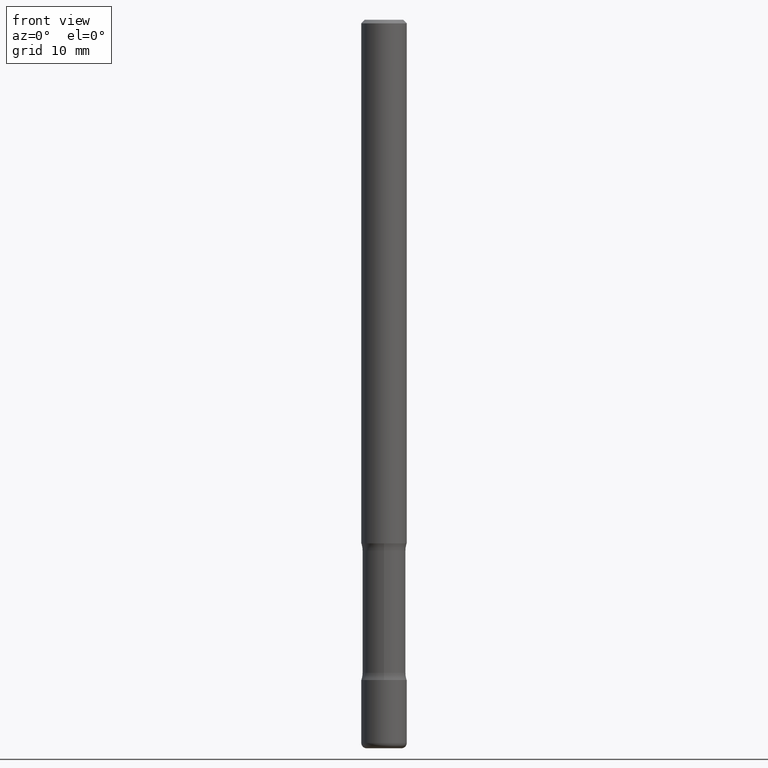
[diagram: clean part render]
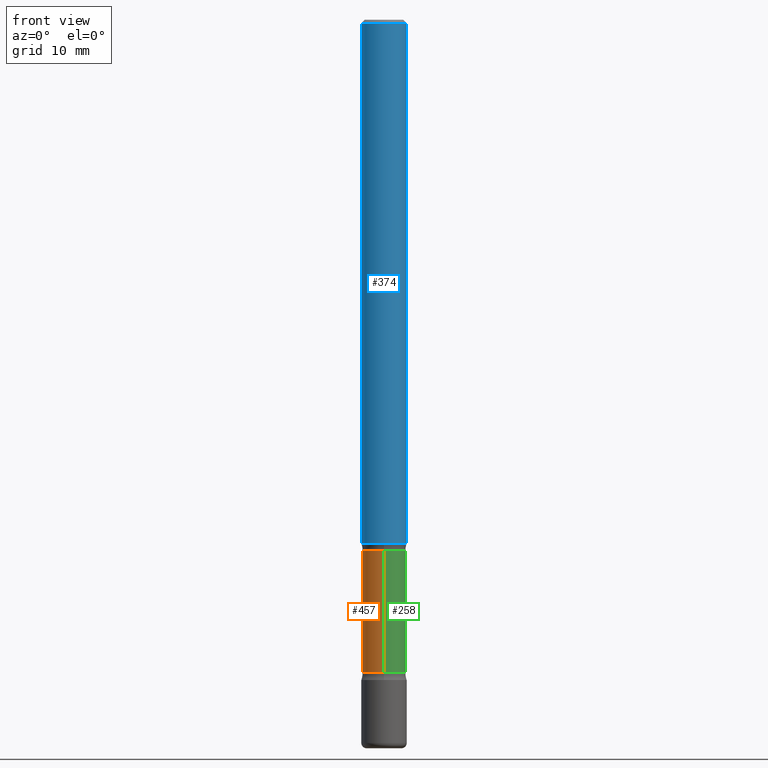
[diagram: same view with three faces highlighted in distinct colors, each labeled with its STEP entity id]
A machine part, front view with three faces highlighted in distinct colors.
Their STEP definitions:

[orange] entity #457 — the highlighted cylindrical surface (edge-blend (fillet) strip) has radius 3.0099 mm, axis along (0, -0, -1).
#8 = FACE_OUTER_BOUND ( 'NONE', #57, .T. ) ;
#19 = DIRECTION ( 'NONE',  ( 6.982962677686265922E-15, 1.000000000000000000, -4.610713913357408992E-15 ) ) ;
#22 = VERTEX_POINT ( 'NONE', #445 ) ;
#57 = EDGE_LOOP ( 'NONE', ( #100, #347, #361, #367 ) ) ;
#84 = EDGE_CURVE ( 'NONE', #431, #22, #333, .T. ) ;
#100 = ORIENTED_EDGE ( 'NONE', *, *, #250, .F. ) ;
#114 = CARTESIAN_POINT ( 'NONE',  ( 8.274810773059163455E-16, 0.1184999999999854642, -4.000000000000000888 ) ) ;
#118 = VECTOR ( 'NONE', #557, 39.37007874015748143 ) ;
#146 = CARTESIAN_POINT ( 'NONE',  ( 9.611480951638210847E-29, -1.420993965269486716E-14, -4.000000000000000000 ) ) ;
#153 = VERTEX_POINT ( 'NONE', #343 ) ;
#159 = DIRECTION ( 'NONE',  ( 1.991084077912239862E-29, -4.142186131702575093E-15, -1.000000000000000000 ) ) ;
#186 = CARTESIAN_POINT ( 'NONE',  ( 8.274810773059099360E-16, 0.1184999999999874487, -3.585216209330933879 ) ) ;
#193 = AXIS2_PLACEMENT_3D ( 'NONE', #281, #159, #490 ) ;
#214 = LINE ( 'NONE', #380, #118 ) ;
#226 = AXIS2_PLACEMENT_3D ( 'NONE', #406, #313, #19 ) ;
#250 = EDGE_CURVE ( 'NONE', #431, #153, #214, .T. ) ;
#272 = DIRECTION ( 'NONE',  ( 1.991084077912239862E-29, -4.142186131702575093E-15, -1.000000000000000000 ) ) ;
#281 = CARTESIAN_POINT ( 'NONE',  ( 7.450724236147113002E-29, -9.714772120505436887E-15, -2.914783790669067010 ) ) ;
#292 = EDGE_CURVE ( 'NONE', #153, #356, #448, .T. ) ;
#313 = DIRECTION ( 'NONE',  ( 1.991084077912239862E-29, -4.142186131702575093E-15, -1.000000000000000000 ) ) ;
#333 = CIRCLE ( 'NONE', #193, 0.1184999999999993836 ) ;
#336 = DIRECTION ( 'NONE',  ( 1.991084077912239862E-29, -4.142186131702575093E-15, -1.000000000000000000 ) ) ;
#343 = CARTESIAN_POINT ( 'NONE',  ( -8.352656312285972766E-16, -0.1185000000000124565, -3.585216209330932546 ) ) ;
#347 = ORIENTED_EDGE ( 'NONE', *, *, #84, .T. ) ;
#356 = VERTEX_POINT ( 'NONE', #186 ) ;
#357 = CYLINDRICAL_SURFACE ( 'NONE', #393, 0.1184999999999996750 ) ;
#361 = ORIENTED_EDGE ( 'NONE', *, *, #512, .T. ) ;
#367 = ORIENTED_EDGE ( 'NONE', *, *, #292, .F. ) ;
#380 = CARTESIAN_POINT ( 'NONE',  ( -8.129690127358280498E-16, -0.1185000000000138720, -3.999999999999999556 ) ) ;
#393 = AXIS2_PLACEMENT_3D ( 'NONE', #146, #272, #441 ) ;
#406 = CARTESIAN_POINT ( 'NONE',  ( 8.785611550260948199E-29, -1.249182798733043599E-14, -3.585216209330933435 ) ) ;
#431 = VERTEX_POINT ( 'NONE', #528 ) ;
#441 = DIRECTION ( 'NONE',  ( 6.982962677686265922E-15, 1.000000000000000000, -4.610713913357419247E-15 ) ) ;
#445 = CARTESIAN_POINT ( 'NONE',  ( 8.274810773058926797E-16, 0.1184999999999896692, -2.914783790669067454 ) ) ;
#448 = CIRCLE ( 'NONE', #226, 0.1184999999999999387 ) ;
#457 = ADVANCED_FACE ( 'NONE', ( #8 ), #357, .T. ) ;
#490 = DIRECTION ( 'NONE',  ( 6.982962677686265922E-15, 1.000000000000000000, -4.610713913357430291E-15 ) ) ;
#496 = LINE ( 'NONE', #114, #539 ) ;
#512 = EDGE_CURVE ( 'NONE', #22, #356, #496, .T. ) ;
#528 = CARTESIAN_POINT ( 'NONE',  ( -8.352656312286072360E-16, -0.1185000000000090981, -2.914783790669066121 ) ) ;
#539 = VECTOR ( 'NONE', #336, 39.37007874015748143 ) ;
#557 = DIRECTION ( 'NONE',  ( 1.991084077912239862E-29, -4.142186131702575093E-15, -1.000000000000000000 ) ) ;

[blue] entity #374 — the highlighted cylindrical surface (edge-blend (fillet) strip) has radius 3.175 mm, axis along (-0, 0, 1).
#12 = DIRECTION ( 'NONE',  ( 1.000000000000000000, -6.982962677686266711E-15, 4.876176775795935793E-29 ) ) ;
#16 = VERTEX_POINT ( 'NONE', #452 ) ;
#27 = AXIS2_PLACEMENT_3D ( 'NONE', #548, #416, #293 ) ;
#91 = CARTESIAN_POINT ( 'NONE',  ( 0.1250000000000006384, -1.091087918388483276E-14, -2.875000000000000000 ) ) ;
#109 = CYLINDRICAL_SURFACE ( 'NONE', #415, 0.1250000000000004718 ) ;
#112 = CARTESIAN_POINT ( 'NONE',  ( -0.1250000000000006384, -4.165740818275317715E-15, -2.875000000000000000 ) ) ;
#115 = VERTEX_POINT ( 'NONE', #91 ) ;
#117 = DIRECTION ( 'NONE',  ( -2.445468806185136877E-29, 3.491481338843145188E-15, 1.000000000000000000 ) ) ;
#143 = CARTESIAN_POINT ( 'NONE',  ( 4.890937612370273159E-31, -6.982962677686291609E-17, -0.02000000000000000042 ) ) ;
#157 = CARTESIAN_POINT ( 'NONE',  ( 0.000000000000000000, 0.000000000000000000, 0.000000000000000000 ) ) ;
#235 = LINE ( 'NONE', #402, #479 ) ;
#238 = VERTEX_POINT ( 'NONE', #423 ) ;
#247 = ORIENTED_EDGE ( 'NONE', *, *, #458, .F. ) ;
#283 = EDGE_LOOP ( 'NONE', ( #247, #353, #515, #559 ) ) ;
#293 = DIRECTION ( 'NONE',  ( 1.000000000000000000, -6.982962677686273810E-15, 0.000000000000000000 ) ) ;
#320 = VERTEX_POINT ( 'NONE', #112 ) ;
#323 = FACE_OUTER_BOUND ( 'NONE', #283, .T. ) ;
#326 = DIRECTION ( 'NONE',  ( 1.000000000000000000, -6.982962677686265922E-15, 0.000000000000000000 ) ) ;
#335 = EDGE_CURVE ( 'NONE', #115, #16, #486, .T. ) ;
#351 = AXIS2_PLACEMENT_3D ( 'NONE', #143, #368, #326 ) ;
#353 = ORIENTED_EDGE ( 'NONE', *, *, #495, .T. ) ;
#360 = CARTESIAN_POINT ( 'NONE',  ( 0.1250000000000004718, -8.728703347107865929E-16, 6.095220969744942862E-30 ) ) ;
#365 = DIRECTION ( 'NONE',  ( -2.445468806185136877E-29, 3.491481338843145188E-15, 1.000000000000000000 ) ) ;
#368 = DIRECTION ( 'NONE',  ( -2.445468806185136597E-29, 3.491481338843145583E-15, 1.000000000000000000 ) ) ;
#374 = ADVANCED_FACE ( 'NONE', ( #323 ), #109, .T. ) ;
#402 = CARTESIAN_POINT ( 'NONE',  ( -0.1250000000000004718, 8.881784197001285850E-16, -6.148668862818656049E-30 ) ) ;
#415 = AXIS2_PLACEMENT_3D ( 'NONE', #157, #523, #12 ) ;
#416 = DIRECTION ( 'NONE',  ( -2.445468806185136597E-29, 3.491481338843145583E-15, 1.000000000000000000 ) ) ;
#421 = EDGE_CURVE ( 'NONE', #238, #16, #491, .T. ) ;
#423 = CARTESIAN_POINT ( 'NONE',  ( -0.1250000000000003053, 8.030407079339224072E-16, -0.02000000000000000042 ) ) ;
#452 = CARTESIAN_POINT ( 'NONE',  ( 0.1250000000000003053, -9.273918764983065184E-16, -0.02000000000000000042 ) ) ;
#458 = EDGE_CURVE ( 'NONE', #320, #238, #235, .T. ) ;
#464 = CIRCLE ( 'NONE', #27, 0.1250000000000006384 ) ;
#479 = VECTOR ( 'NONE', #117, 39.37007874015748143 ) ;
#486 = LINE ( 'NONE', #360, #545 ) ;
#491 = CIRCLE ( 'NONE', #351, 0.1250000000000003053 ) ;
#495 = EDGE_CURVE ( 'NONE', #320, #115, #464, .T. ) ;
#515 = ORIENTED_EDGE ( 'NONE', *, *, #335, .T. ) ;
#523 = DIRECTION ( 'NONE',  ( -2.445468806185136597E-29, 3.491481338843145583E-15, 1.000000000000000000 ) ) ;
#545 = VECTOR ( 'NONE', #365, 39.37007874015748143 ) ;
#548 = CARTESIAN_POINT ( 'NONE',  ( 7.030722817782267716E-29, -1.003800884917404311E-14, -2.875000000000000000 ) ) ;
#559 = ORIENTED_EDGE ( 'NONE', *, *, #421, .F. ) ;

[green] entity #258 — the highlighted cylindrical surface (edge-blend (fillet) strip) has radius 3.0099 mm, axis along (0, -0, -1).
#22 = VERTEX_POINT ( 'NONE', #445 ) ;
#26 = AXIS2_PLACEMENT_3D ( 'NONE', #125, #184, #171 ) ;
#39 = CYLINDRICAL_SURFACE ( 'NONE', #208, 0.1184999999999996750 ) ;
#86 = CARTESIAN_POINT ( 'NONE',  ( 9.611480951638210847E-29, -1.420993965269486716E-14, -4.000000000000000000 ) ) ;
#105 = ORIENTED_EDGE ( 'NONE', *, *, #250, .T. ) ;
#114 = CARTESIAN_POINT ( 'NONE',  ( 8.274810773059163455E-16, 0.1184999999999854642, -4.000000000000000888 ) ) ;
#118 = VECTOR ( 'NONE', #557, 39.37007874015748143 ) ;
#125 = CARTESIAN_POINT ( 'NONE',  ( 7.450724236147113002E-29, -9.714772120505436887E-15, -2.914783790669067010 ) ) ;
#133 = FACE_OUTER_BOUND ( 'NONE', #183, .T. ) ;
#153 = VERTEX_POINT ( 'NONE', #343 ) ;
#171 = DIRECTION ( 'NONE',  ( 6.982962677686265922E-15, 1.000000000000000000, -4.610713913357430291E-15 ) ) ;
#183 = EDGE_LOOP ( 'NONE', ( #429, #105, #514, #439 ) ) ;
#184 = DIRECTION ( 'NONE',  ( 1.991084077912239862E-29, -4.142186131702575093E-15, -1.000000000000000000 ) ) ;
#186 = CARTESIAN_POINT ( 'NONE',  ( 8.274810773059099360E-16, 0.1184999999999874487, -3.585216209330933879 ) ) ;
#208 = AXIS2_PLACEMENT_3D ( 'NONE', #86, #216, #555 ) ;
#212 = EDGE_CURVE ( 'NONE', #22, #431, #270, .T. ) ;
#214 = LINE ( 'NONE', #380, #118 ) ;
#216 = DIRECTION ( 'NONE',  ( 1.991084077912239862E-29, -4.142186131702575093E-15, -1.000000000000000000 ) ) ;
#236 = CIRCLE ( 'NONE', #527, 0.1184999999999999387 ) ;
#249 = DIRECTION ( 'NONE',  ( 1.991084077912239862E-29, -4.142186131702575093E-15, -1.000000000000000000 ) ) ;
#250 = EDGE_CURVE ( 'NONE', #431, #153, #214, .T. ) ;
#258 = ADVANCED_FACE ( 'NONE', ( #133 ), #39, .T. ) ;
#270 = CIRCLE ( 'NONE', #26, 0.1184999999999993836 ) ;
#285 = CARTESIAN_POINT ( 'NONE',  ( 8.785611550260948199E-29, -1.249182798733043599E-14, -3.585216209330933435 ) ) ;
#336 = DIRECTION ( 'NONE',  ( 1.991084077912239862E-29, -4.142186131702575093E-15, -1.000000000000000000 ) ) ;
#337 = DIRECTION ( 'NONE',  ( 6.982962677686265922E-15, 1.000000000000000000, -4.610713913357408992E-15 ) ) ;
#343 = CARTESIAN_POINT ( 'NONE',  ( -8.352656312285972766E-16, -0.1185000000000124565, -3.585216209330932546 ) ) ;
#356 = VERTEX_POINT ( 'NONE', #186 ) ;
#380 = CARTESIAN_POINT ( 'NONE',  ( -8.129690127358280498E-16, -0.1185000000000138720, -3.999999999999999556 ) ) ;
#429 = ORIENTED_EDGE ( 'NONE', *, *, #212, .T. ) ;
#431 = VERTEX_POINT ( 'NONE', #528 ) ;
#439 = ORIENTED_EDGE ( 'NONE', *, *, #512, .F. ) ;
#445 = CARTESIAN_POINT ( 'NONE',  ( 8.274810773058926797E-16, 0.1184999999999896692, -2.914783790669067454 ) ) ;
#496 = LINE ( 'NONE', #114, #539 ) ;
#512 = EDGE_CURVE ( 'NONE', #22, #356, #496, .T. ) ;
#514 = ORIENTED_EDGE ( 'NONE', *, *, #556, .F. ) ;
#527 = AXIS2_PLACEMENT_3D ( 'NONE', #285, #249, #337 ) ;
#528 = CARTESIAN_POINT ( 'NONE',  ( -8.352656312286072360E-16, -0.1185000000000090981, -2.914783790669066121 ) ) ;
#539 = VECTOR ( 'NONE', #336, 39.37007874015748143 ) ;
#555 = DIRECTION ( 'NONE',  ( 6.982962677686265922E-15, 1.000000000000000000, -4.610713913357419247E-15 ) ) ;
#556 = EDGE_CURVE ( 'NONE', #356, #153, #236, .T. ) ;
#557 = DIRECTION ( 'NONE',  ( 1.991084077912239862E-29, -4.142186131702575093E-15, -1.000000000000000000 ) ) ;